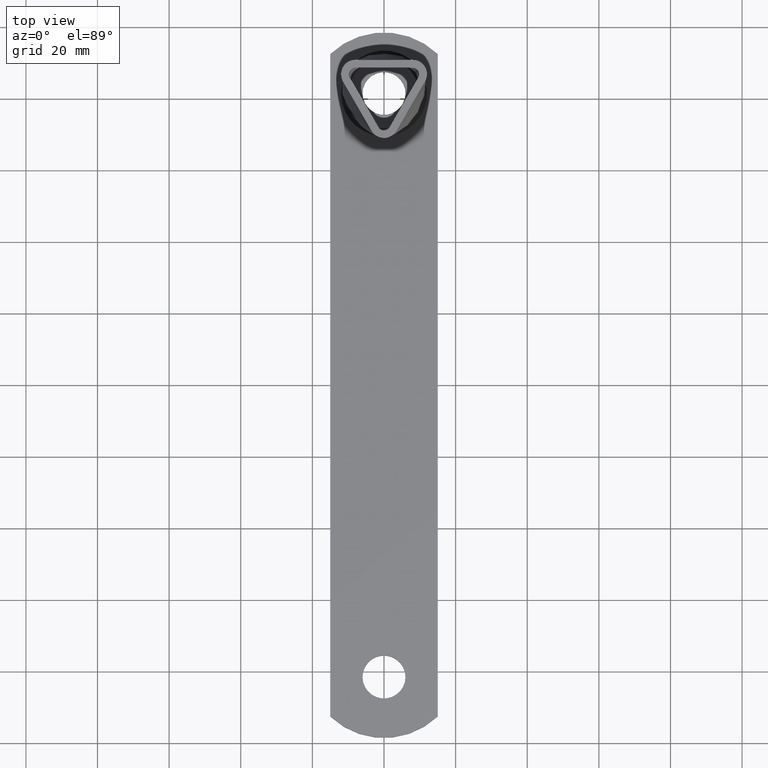
[diagram: clean part render]
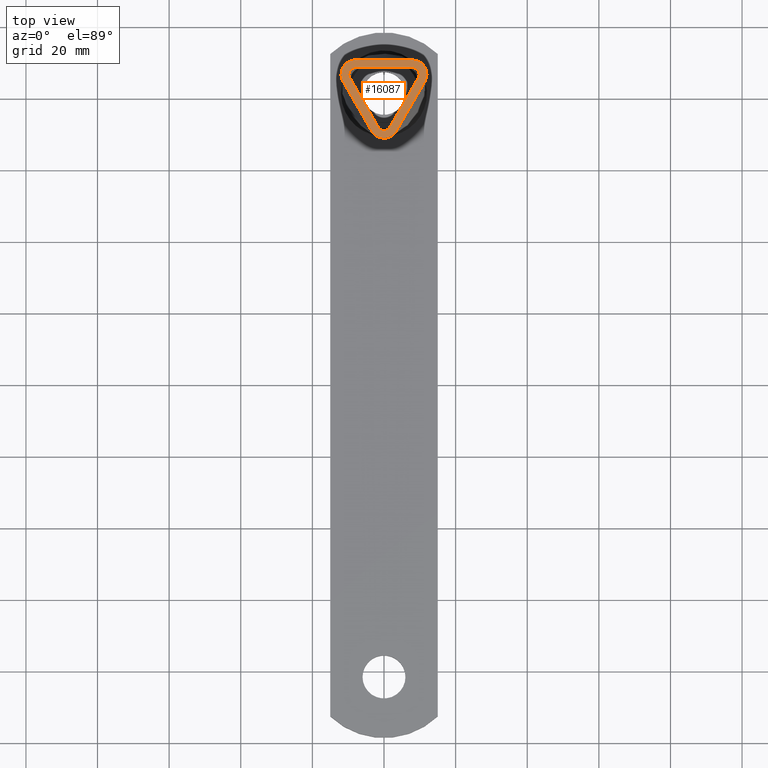
[diagram: same view with one face highlighted and labeled with its STEP entity id]
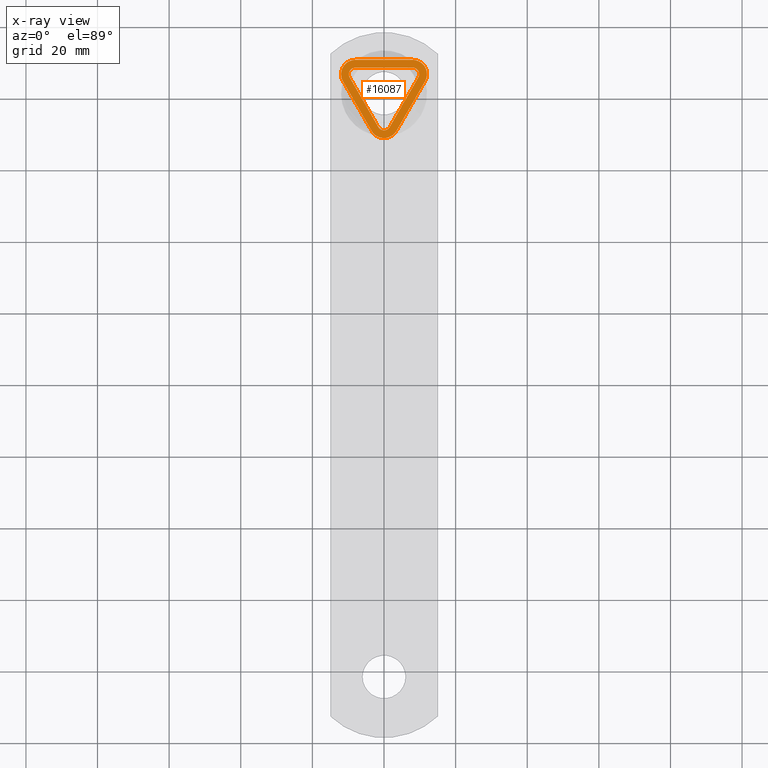
[diagram: x-ray of the same camera — body ghosted, the highlighted face saturated]
A machine part, top view. The second image highlights one B-rep face of the part: STEP entity #16087.
The next image is the same camera in x-ray: the body ghosted, the highlighted face saturated — about 0% of this face is hidden behind the body in this view.
In plain terms, the highlighted planar face has unit normal (0, 0, 1).
Its self-contained STEP definition (entity closure, byte-faithful):
#5 = CARTESIAN_POINT ( 'NONE',  ( 1.481022421224297059, 71.19391925393976805, 43.50000000000002132 ) ) ;
#59 = CARTESIAN_POINT ( 'NONE',  ( 8.600824711495997477, 83.51208585099111303, 43.49999999999991473 ) ) ;
#127 = CARTESIAN_POINT ( 'NONE',  ( 8.306454245799471892, 87.92312720741094267, 43.50000000000000000 ) ) ;
#191 = CARTESIAN_POINT ( 'NONE',  ( 9.633153649311225308, 85.30114853717385870, 43.49999999999999289 ) ) ;
#715 = VERTEX_POINT ( 'NONE', #2138 ) ;
#926 = DIRECTION ( 'NONE',  ( 0.000000000000000000, 0.000000000000000000, 1.000000000000000000 ) ) ;
#1245 = CARTESIAN_POINT ( 'NONE',  ( -3.353507889138217735, 74.42787039383632930, 43.50000000000001421 ) ) ;
#1307 = CARTESIAN_POINT ( 'NONE',  ( -8.521760363769747215, 87.87395802608659778, 43.50000000000003553 ) ) ;
#1368 = CARTESIAN_POINT ( 'NONE',  ( -0.8397737320497521418, 70.63521026500842481, 43.50000000000003553 ) ) ;
#1432 = CARTESIAN_POINT ( 'NONE',  ( 3.397460626013008245, 74.50380094747131920, 43.50000000000002842 ) ) ;
#1501 = CARTESIAN_POINT ( 'NONE',  ( 9.290220063036974452, 84.70394511703595697, 43.50000000000004263 ) ) ;
#1512 = VERTEX_POINT ( 'NONE', #17715 ) ;
#1561 = CARTESIAN_POINT ( 'NONE',  ( 9.787678013208010341, 85.64765438519035001, 43.50000000000000000 ) ) ;
#1619 = CARTESIAN_POINT ( 'NONE',  ( 9.680214917253389117, 86.84408114881512120, 43.50000000000000711 ) ) ;
#1788 = CARTESIAN_POINT ( 'NONE',  ( 8.516175970806566298, 87.86844533069566410, 43.50000000000000000 ) ) ;
#2138 = CARTESIAN_POINT ( 'NONE',  ( 3.464101615137759271, 70.26239569296599541, 43.50000000000000711 ) ) ;
#2187 = PLANE ( 'NONE',  #13492 ) ;
#2264 = EDGE_CURVE ( 'NONE', #16668, #1512, #3851, .T. ) ;
#2561 = CARTESIAN_POINT ( 'NONE',  ( 2.015518143292761355, 87.93579303519238977, 43.50000000000001421 ) ) ;
#2626 = CARTESIAN_POINT ( 'NONE',  ( -5.014065620587721206, 87.94117325639405180, 43.50000000000017053 ) ) ;
#2684 = CARTESIAN_POINT ( 'NONE',  ( -1.327328698230352044, 71.00219115859420072, 43.50000000000000711 ) ) ;
#2699 = CARTESIAN_POINT ( 'NONE',  ( -11.46410161530705274, 84.11880215381029302, 43.50000000000000711 ) ) ;
#2746 = CARTESIAN_POINT ( 'NONE',  ( -1.976613188669666510, 72.03661092770455809, 43.49999999999998579 ) ) ;
#2803 = CARTESIAN_POINT ( 'NONE',  ( 0.9214162466847749533, 70.67940192883776263, 43.49999999999997868 ) ) ;
#2862 = CARTESIAN_POINT ( 'NONE',  ( 4.007666997634818706, 75.56472932893190375, 43.50000000000004263 ) ) ;
#2907 = LINE ( 'NONE', #9519, #14544 ) ;
#2921 = CARTESIAN_POINT ( 'NONE',  ( -9.828062156776701030, 86.23195444353719097, 43.50000000000001421 ) ) ;
#3008 = DIRECTION ( 'NONE',  ( 0.000000000000000000, 0.000000000000000000, 1.000000000000000000 ) ) ;
#3047 = CARTESIAN_POINT ( 'NONE',  ( 9.129731941380782700, 87.55925589949592336, 43.50000000000000711 ) ) ;
#3217 = CARTESIAN_POINT ( 'NONE',  ( 9.776848010182296989, 86.55824603726469491, 43.50000000000000711 ) ) ;
#3851 = CIRCLE ( 'NONE', #9734, 4.000000000000000000 ) ;
#4052 = CARTESIAN_POINT ( 'NONE',  ( -1.818800273369289622, 87.93683653867506678, 43.50000000000000000 ) ) ;
#4119 = CARTESIAN_POINT ( 'NONE',  ( -8.818304811571811896, 87.75782766943704871, 43.50000000000002132 ) ) ;
#4184 = CARTESIAN_POINT ( 'NONE',  ( 2.099714021927131746, 72.24994008334728335, 43.49999999999984368 ) ) ;
#4241 = CARTESIAN_POINT ( 'NONE',  ( 1.172790936637156944, 70.85630509398609433, 43.50000000000000000 ) ) ;
#4300 = CARTESIAN_POINT ( 'NONE',  ( -1.631931410811571892, 71.43906009216902930, 43.50000000000002842 ) ) ;
#4363 = CARTESIAN_POINT ( 'NONE',  ( -2.742078282909187426, 73.36478672323937644, 43.49999999999995026 ) ) ;
#4490 = CARTESIAN_POINT ( 'NONE',  ( 9.448806432654219378, 87.23709848185613680, 43.50000000000002132 ) ) ;
#4515 = ORIENTED_EDGE ( 'NONE', *, *, #14939, .T. ) ;
#4672 = CARTESIAN_POINT ( 'NONE',  ( 7.496733341795217775, 87.94362628454122444, 43.49999999999982947 ) ) ;
#4825 = CARTESIAN_POINT ( 'NONE',  ( 11.46410161513774995, 84.11880215351700940, 43.50000000000000711 ) ) ;
#5557 = CARTESIAN_POINT ( 'NONE',  ( -1.823462423977700197, 71.77100904646728452, 43.50000000000004974 ) ) ;
#5590 = AXIS2_PLACEMENT_3D ( 'NONE', #17369, #3008, #10280 ) ;
#5617 = CARTESIAN_POINT ( 'NONE',  ( -7.090988497248828182, 87.94344071247033412, 43.49999999999944578 ) ) ;
#5678 = CARTESIAN_POINT ( 'NONE',  ( -9.736114262526644580, 86.70007119446432853, 43.50000000000000000 ) ) ;
#5716 = VERTEX_POINT ( 'NONE', #2699 ) ;
#5741 = CARTESIAN_POINT ( 'NONE',  ( 7.067586424968669512, 80.86423109201116688, 43.49999999999992184 ) ) ;
#5799 = CARTESIAN_POINT ( 'NONE',  ( -1.594820439253251676, 71.37175575702678998, 43.49999999999995026 ) ) ;
#5854 = CARTESIAN_POINT ( 'NONE',  ( 9.613930008981265374, 86.98232765544219092, 43.50000000000002132 ) ) ;
#5882 = CARTESIAN_POINT ( 'NONE',  ( -3.464101615111427890, 70.26239569292039278, 43.50000000000000711 ) ) ;
#5979 = CARTESIAN_POINT ( 'NONE',  ( 8.160452227098415889, 87.94265019972226582, 43.50000000000004974 ) ) ;
#5987 = DIRECTION ( 'NONE',  ( 0.000000000000000000, 0.000000000000000000, 1.000000000000000000 ) ) ;
#6038 = CARTESIAN_POINT ( 'NONE',  ( 9.005473618177905593, 87.64919983979434903, 43.50000000000001421 ) ) ;
#6609 = CIRCLE ( 'NONE', #18088, 4.000000000000000000 ) ;
#6780 = VERTEX_POINT ( 'NONE', #1788 ) ;
#6806 = CARTESIAN_POINT ( 'NONE',  ( 4.571730421067447203, 87.94174181642451060, 43.50000000000000711 ) ) ;
#6993 = CARTESIAN_POINT ( 'NONE',  ( 0.7859003052413234824, 70.60882816109793225, 43.50000000000002132 ) ) ;
#7059 = CARTESIAN_POINT ( 'NONE',  ( -1.514615214891150696, 71.24172054011623345, 43.49999999999995737 ) ) ;
#7120 = CARTESIAN_POINT ( 'NONE',  ( -1.470530564150920094, 71.17974635536769767, 43.50000000000000711 ) ) ;
#7181 = CARTESIAN_POINT ( 'NONE',  ( -8.874916217099800164, 83.98499245093091758, 43.49999999999992184 ) ) ;
#7241 = CARTESIAN_POINT ( 'NONE',  ( -0.4092938283430315183, 70.47840569540399258, 43.49999999999998579 ) ) ;
#7282 = FACE_BOUND ( 'NONE', #9877, .T. ) ;
#7365 = CARTESIAN_POINT ( 'NONE',  ( 9.807674388135788845, 86.40687110770036838, 43.50000000000002132 ) ) ;
#7408 = DIRECTION ( 'NONE',  ( 1.000000000000000000, 0.000000000000000000, 0.000000000000000000 ) ) ;
#7420 = CARTESIAN_POINT ( 'NONE',  ( 7.127942698842146818, 87.94341850025458029, 43.50000000000000000 ) ) ;
#7544 = EDGE_CURVE ( 'NONE', #1512, #14567, #2907, .T. ) ;
#7548 = CARTESIAN_POINT ( 'NONE',  ( -8.000000000000000000, 86.11880215351700940, 43.50000000000000711 ) ) ;
#7582 = CARTESIAN_POINT ( 'NONE',  ( 8.000000000000000000, 86.11880215351700940, 43.50000000000000711 ) ) ;
#8431 = CARTESIAN_POINT ( 'NONE',  ( -8.368144588091372071, 87.91244412353016457, 43.50000000000000000 ) ) ;
#8492 = CARTESIAN_POINT ( 'NONE',  ( -7.889803138356426437, 87.94376823224681061, 43.50000000000020606 ) ) ;
#8553 = CARTESIAN_POINT ( 'NONE',  ( -9.795188327512844850, 85.75732564285522130, 43.49999999999999289 ) ) ;
#8609 = B_SPLINE_CURVE_WITH_KNOTS ( 'NONE', 3,
 ( #12501, #6806, #2561, #4052, #16914, #2626, #18402, #18536, #5617, #12934, #8492, #14191, #8431, #1307, #4119, #17224, #17161, #11314, #15651, #15707, #5678, #14371, #2921, #8682, #8553, #12807, #17036, #15771, #11249, #9822, #7181, #8615, #11437, #14127, #1245, #4363, #2746, #5557, #4300, #5799, #7059, #7120, #2684, #9948, #15590, #1368, #17095, #7241, #15838, #17284, #12689, #11379, #6993, #2803, #4241, #18472, #14256, #5, #14312, #12746, #9885, #4184, #10012, #1432, #2862, #12870, #5741, #59, #10073, #1501, #11502, #14557, #11632, #191, #1561, #13224, #7365, #3217, #1619, #5854, #4490, #8870, #3047, #6038, #17579, #8923, #127, #5979, #13058, #14620, #4672, #15894, #14499, #8804, #10316, #16012, #7420 ),
 .UNSPECIFIED., .T., .F.,
 ( 4, 2, 2, 2, 1, 2, 2, 2, 2, 2, 2, 2, 2, 2, 2, 2, 2, 2, 2, 2, 2, 2, 2, 2, 2, 2, 2, 2, 2, 2, 2, 1, 2, 2, 2, 2, 1, 2, 2, 2, 2, 2, 2, 2, 2, 2, 2, 1, 1, 2, 4 ),
 ( 0.001514396480250143140, 0.009206261697586062137, 0.01305219430625402001, 0.01497516061058799981, 0.01593664376275499145, 0.01641738533883848813, 0.01689812691492198482, 0.01737886849100547804, 0.01785961006708897125, 0.01834035164317246794, 0.01882109321925596462, 0.01930183479533945784, 0.01978257637142295106, 0.02026331794750644774, 0.02050368873554819435, 0.02074405952358994443, 0.02458999213225759525, 0.03228185734959290037, 0.03612778995826054079, 0.03708927311042744396, 0.03732964389846914893, 0.03757001468651086085, 0.03805075626259426386, 0.03853149783867768075, 0.03901223941476109763, 0.03949298099084450758, 0.03997372256692792447, 0.04045446414301133442, 0.04093520571909474437, 0.04117557650713644241, 0.04141594729517813350, 0.04189668887126147406, 0.04381965517559488488, 0.04766558778426165099, 0.05535745300159518323, 0.05728041930592857323, 0.05776116088201191379, 0.05800153167005361182, 0.05824190245809530292, 0.05920338561026206037, 0.05968412718634544256, 0.06016486876242881782, 0.06064561033851220001, 0.06112635191459557527, 0.06160709349067895052, 0.06208783506676233271, 0.06256857664284570797, 0.06280894743088739907, 0.06292913282490823768, 0.06298922552191867086, 0.06304931821892909016 ),
 .UNSPECIFIED. ) ;
#8615 = CARTESIAN_POINT ( 'NONE',  ( -8.260202986710991624, 82.92378623538665749, 43.49999999999992184 ) ) ;
#8682 = CARTESIAN_POINT ( 'NONE',  ( -9.831436931593669826, 86.07236768800910909, 43.50000000000000711 ) ) ;
#8804 = CARTESIAN_POINT ( 'NONE',  ( 7.201701254101005922, 87.94346558154057902, 43.49999999999992184 ) ) ;
#8870 = CARTESIAN_POINT ( 'NONE',  ( 9.352079708180797368, 87.35257900799807373, 43.49999999999997868 ) ) ;
#8923 = CARTESIAN_POINT ( 'NONE',  ( 8.595780780836168589, 87.84941337095764879, 43.50000000000000711 ) ) ;
#9519 = CARTESIAN_POINT ( 'NONE',  ( -8.000000000000000000, 90.11880215351700940, 43.50000000000000711 ) ) ;
#9734 = AXIS2_PLACEMENT_3D ( 'NONE', #7582, #14669, #7408 ) ;
#9822 = CARTESIAN_POINT ( 'NONE',  ( -9.526735638102492132, 85.11326416987827770, 43.49999999999992184 ) ) ;
#9877 = EDGE_LOOP ( 'NONE', ( #16546 ) ) ;
#9885 = CARTESIAN_POINT ( 'NONE',  ( 1.717495319020992506, 71.58734550922510209, 43.49999999999987921 ) ) ;
#9948 = CARTESIAN_POINT ( 'NONE',  ( -1.215784522124668365, 70.89378792980113531, 43.50000000000000000 ) ) ;
#10012 = CARTESIAN_POINT ( 'NONE',  ( 2.481509870253975514, 72.91277922138628753, 43.50000000000001421 ) ) ;
#10073 = CARTESIAN_POINT ( 'NONE',  ( 8.907366907270931833, 84.04171775180587645, 43.50000000000004974 ) ) ;
#10077 = DIRECTION ( 'NONE',  ( 0.4999999999999997224, -0.8660254037844388186, -0.000000000000000000 ) ) ;
#10186 = EDGE_LOOP ( 'NONE', ( #12591, #17518, #4515, #17242, #10432, #14936 ) ) ;
#10280 = DIRECTION ( 'NONE',  ( 1.000000000000000000, 0.000000000000000000, 0.000000000000000000 ) ) ;
#10316 = CARTESIAN_POINT ( 'NONE',  ( 7.164822006698400969, 87.94344243226925073, 43.49999999999991473 ) ) ;
#10432 = ORIENTED_EDGE ( 'NONE', *, *, #15836, .T. ) ;
#10546 = EDGE_CURVE ( 'NONE', #6780, #6780, #8609, .T. ) ;
#10635 = CIRCLE ( 'NONE', #5590, 4.000000000000004441 ) ;
#11249 = CARTESIAN_POINT ( 'NONE',  ( -9.566322041528287912, 85.17893203227053789, 43.49999999999995737 ) ) ;
#11314 = CARTESIAN_POINT ( 'NONE',  ( -9.329282264631833854, 87.37775115837951034, 43.50000000000000711 ) ) ;
#11379 = CARTESIAN_POINT ( 'NONE',  ( 0.5010466897259642227, 70.50185117615116326, 43.50000000000000000 ) ) ;
#11437 = CARTESIAN_POINT ( 'NONE',  ( -6.416214322632026956, 79.74008248248772190, 43.49999999999990763 ) ) ;
#11502 = CARTESIAN_POINT ( 'NONE',  ( 9.405051954841463058, 84.90262722237766013, 43.50000000000009237 ) ) ;
#11632 = CARTESIAN_POINT ( 'NONE',  ( 9.596361522004070110, 85.23380849839976747, 43.49999999999995737 ) ) ;
#12501 = CARTESIAN_POINT ( 'NONE',  ( 7.127942698842146818, 87.94341850025458029, 43.50000000000000000 ) ) ;
#12591 = ORIENTED_EDGE ( 'NONE', *, *, #2264, .T. ) ;
#12689 = CARTESIAN_POINT ( 'NONE',  ( 0.3497960806538492062, 70.46593250522568042, 43.50000000000003553 ) ) ;
#12746 = CARTESIAN_POINT ( 'NONE',  ( 1.602802320460680274, 71.38858297704487654, 43.50000000000002842 ) ) ;
#12807 = CARTESIAN_POINT ( 'NONE',  ( -9.755502326071622932, 85.60017854711506402, 43.50000000000002842 ) ) ;
#12870 = CARTESIAN_POINT ( 'NONE',  ( 5.840703581644998366, 78.74611629589857387, 43.50000000000004974 ) ) ;
#12934 = CARTESIAN_POINT ( 'NONE',  ( -7.570277516980848276, 87.94366445654684128, 43.50000000000019895 ) ) ;
#13058 = CARTESIAN_POINT ( 'NONE',  ( 7.865600298737708940, 87.94482216957342757, 43.50000000000002132 ) ) ;
#13224 = CARTESIAN_POINT ( 'NONE',  ( 9.842930839311389235, 85.95505287045151022, 43.50000000000000711 ) ) ;
#13492 = AXIS2_PLACEMENT_3D ( 'NONE', #13875, #926, #16656 ) ;
#13875 = CARTESIAN_POINT ( 'NONE',  ( 8.000000000000000000, 86.11880215351700940, 43.50000000000000711 ) ) ;
#14127 = CARTESIAN_POINT ( 'NONE',  ( -5.189022955150988992, 77.61641486346739782, 43.50000000000002132 ) ) ;
#14191 = CARTESIAN_POINT ( 'NONE',  ( -8.050188357870107225, 87.95012047855827575, 43.50000000000001421 ) ) ;
#14256 = CARTESIAN_POINT ( 'NONE',  ( 1.434230241282347329, 71.13237926141692924, 43.50000000000002132 ) ) ;
#14312 = CARTESIAN_POINT ( 'NONE',  ( 1.565754000203800622, 71.32164478039953792, 43.50000000000000000 ) ) ;
#14371 = CARTESIAN_POINT ( 'NONE',  ( -9.780081082889036992, 86.54804173430723324, 43.49999999999999289 ) ) ;
#14499 = CARTESIAN_POINT ( 'NONE',  ( 7.257020064421039862, 87.94349951842660573, 43.49999999999913314 ) ) ;
#14544 = VECTOR ( 'NONE', #15222, 1000.000000000000000 ) ;
#14557 = CARTESIAN_POINT ( 'NONE',  ( 9.519843362706915002, 85.10133271401547006, 43.49999999999994316 ) ) ;
#14567 = VERTEX_POINT ( 'NONE', #18480 ) ;
#14620 = CARTESIAN_POINT ( 'NONE',  ( 7.718005234284772698, 87.94371867251263097, 43.49999999999980815 ) ) ;
#14669 = DIRECTION ( 'NONE',  ( 0.000000000000000000, 0.000000000000000000, 1.000000000000000000 ) ) ;
#14936 = ORIENTED_EDGE ( 'NONE', *, *, #17038, .T. ) ;
#14939 = EDGE_CURVE ( 'NONE', #14567, #5716, #6609, .T. ) ;
#15188 = CARTESIAN_POINT ( 'NONE',  ( 11.46410161513774995, 84.11880215351700940, 43.50000000000000711 ) ) ;
#15222 = DIRECTION ( 'NONE',  ( -1.000000000000000000, -0.000000000000000000, -0.000000000000000000 ) ) ;
#15590 = CARTESIAN_POINT ( 'NONE',  ( -0.9729549890949552582, 70.71078138620104880, 43.50000000000000711 ) ) ;
#15651 = CARTESIAN_POINT ( 'NONE',  ( -9.526201291279550176, 87.12991162962320857, 43.50000000000002842 ) ) ;
#15707 = CARTESIAN_POINT ( 'NONE',  ( -9.609096714801742323, 86.99236326850346757, 43.50000000000000711 ) ) ;
#15771 = CARTESIAN_POINT ( 'NONE',  ( -9.639428214149100782, 85.31368640595388797, 43.49999999999994316 ) ) ;
#15836 = EDGE_CURVE ( 'NONE', #17401, #715, #10635, .T. ) ;
#15838 = CARTESIAN_POINT ( 'NONE',  ( -0.1069442428784447008, 70.43523423755105739, 43.50000000000001421 ) ) ;
#15894 = CARTESIAN_POINT ( 'NONE',  ( 7.386096856140166977, 87.94357310636367231, 43.50000000000082423 ) ) ;
#16012 = CARTESIAN_POINT ( 'NONE',  ( 7.147913107262256815, 87.94343159934702214, 43.50000000000000711 ) ) ;
#16022 = DIRECTION ( 'NONE',  ( -1.000000000000000000, 0.000000000000000000, 0.000000000000000000 ) ) ;
#16087 = ADVANCED_FACE ( 'NONE', ( #7282, #18491 ), #2187, .T. ) ;
#16107 = DIRECTION ( 'NONE',  ( 0.4999999999999997224, 0.8660254037844388186, -0.000000000000000000 ) ) ;
#16247 = LINE ( 'NONE', #18539, #16458 ) ;
#16458 = VECTOR ( 'NONE', #10077, 1000.000000000000000 ) ;
#16546 = ORIENTED_EDGE ( 'NONE', *, *, #10546, .F. ) ;
#16656 = DIRECTION ( 'NONE',  ( 1.000000000000000000, 0.000000000000000000, -0.000000000000000000 ) ) ;
#16668 = VERTEX_POINT ( 'NONE', #15188 ) ;
#16914 = CARTESIAN_POINT ( 'NONE',  ( -3.096906412256695607, 87.93851284280351877, 43.50000000000018474 ) ) ;
#17036 = CARTESIAN_POINT ( 'NONE',  ( -9.671593699080526463, 85.38353607886487850, 43.50000000000000711 ) ) ;
#17038 = EDGE_CURVE ( 'NONE', #715, #16668, #18061, .T. ) ;
#17095 = CARTESIAN_POINT ( 'NONE',  ( -0.5558934880846739812, 70.51826604448112334, 43.50000000000002132 ) ) ;
#17161 = CARTESIAN_POINT ( 'NONE',  ( -9.212815262579631792, 87.49051185699110533, 43.50000000000000000 ) ) ;
#17170 = VECTOR ( 'NONE', #16107, 1000.000000000000000 ) ;
#17224 = CARTESIAN_POINT ( 'NONE',  ( -8.958852736529994587, 87.67939056029214839, 43.50000000000002132 ) ) ;
#17242 = ORIENTED_EDGE ( 'NONE', *, *, #17754, .T. ) ;
#17284 = CARTESIAN_POINT ( 'NONE',  ( 0.04778374101028189103, 70.43271316325692055, 43.50000000000004263 ) ) ;
#17369 = CARTESIAN_POINT ( 'NONE',  ( 0.000000000000000000, 72.26239569296599541, 43.50000000000000711 ) ) ;
#17401 = VERTEX_POINT ( 'NONE', #5882 ) ;
#17518 = ORIENTED_EDGE ( 'NONE', *, *, #7544, .T. ) ;
#17579 = CARTESIAN_POINT ( 'NONE',  ( 8.740557566123113631, 87.79362467040239437, 43.50000000000000711 ) ) ;
#17715 = CARTESIAN_POINT ( 'NONE',  ( 8.000000000040468962, 90.11880215351700940, 43.50000000000000711 ) ) ;
#17754 = EDGE_CURVE ( 'NONE', #5716, #17401, #16247, .T. ) ;
#18061 = LINE ( 'NONE', #4825, #17170 ) ;
#18088 = AXIS2_PLACEMENT_3D ( 'NONE', #7548, #5987, #16022 ) ;
#18402 = CARTESIAN_POINT ( 'NONE',  ( -5.653118690031408100, 87.94205542241309104, 43.50000000000015632 ) ) ;
#18472 = CARTESIAN_POINT ( 'NONE',  ( 1.284904781860482181, 70.95888725863245838, 43.50000000000003553 ) ) ;
#18480 = CARTESIAN_POINT ( 'NONE',  ( -8.000000000330718564, 90.11880215351700940, 43.50000000000000711 ) ) ;
#18491 = FACE_OUTER_BOUND ( 'NONE', #10186, .T. ) ;
#18536 = CARTESIAN_POINT ( 'NONE',  ( -6.611698294196918013, 87.94303581230344946, 43.50000000000014921 ) ) ;
#18539 = CARTESIAN_POINT ( 'NONE',  ( -3.464101615137759271, 70.26239569296599541, 43.50000000000000711 ) ) ;